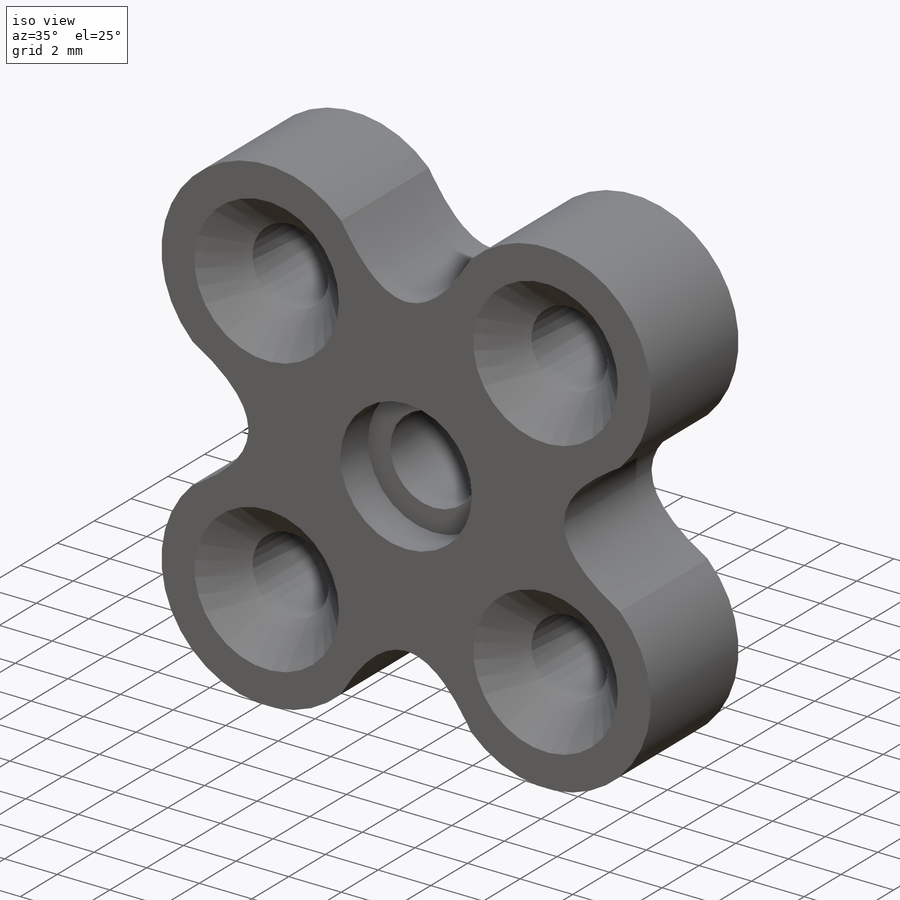
[diagram: iso view]
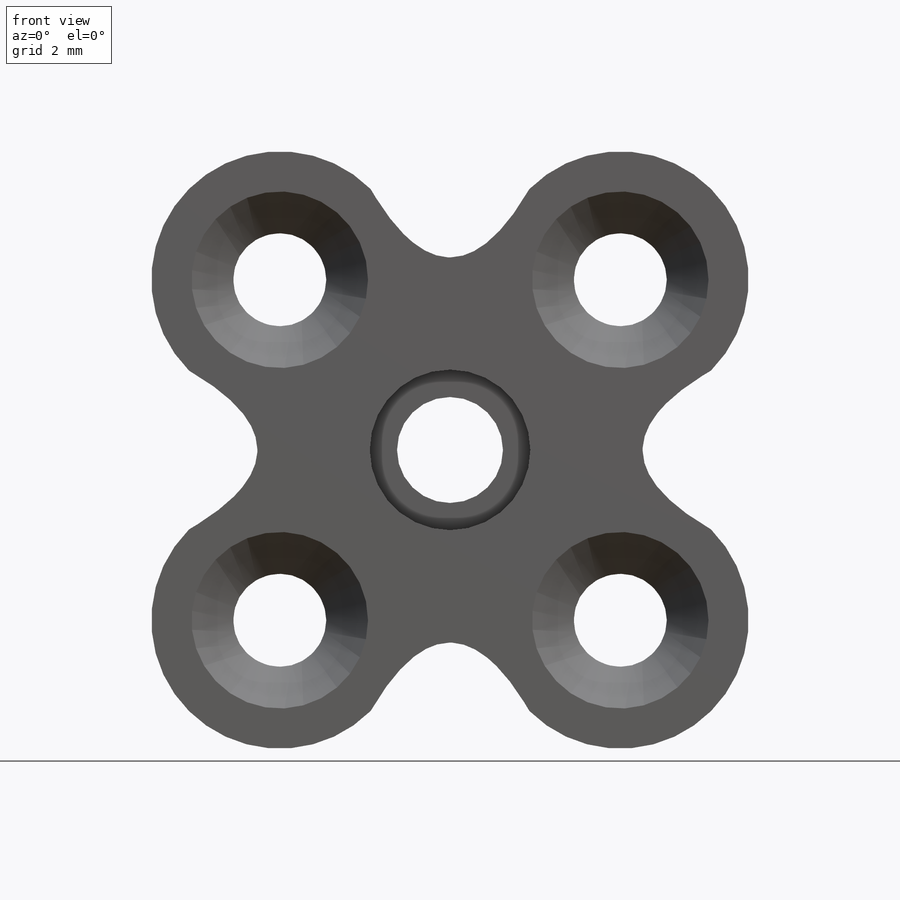
[diagram: front view]
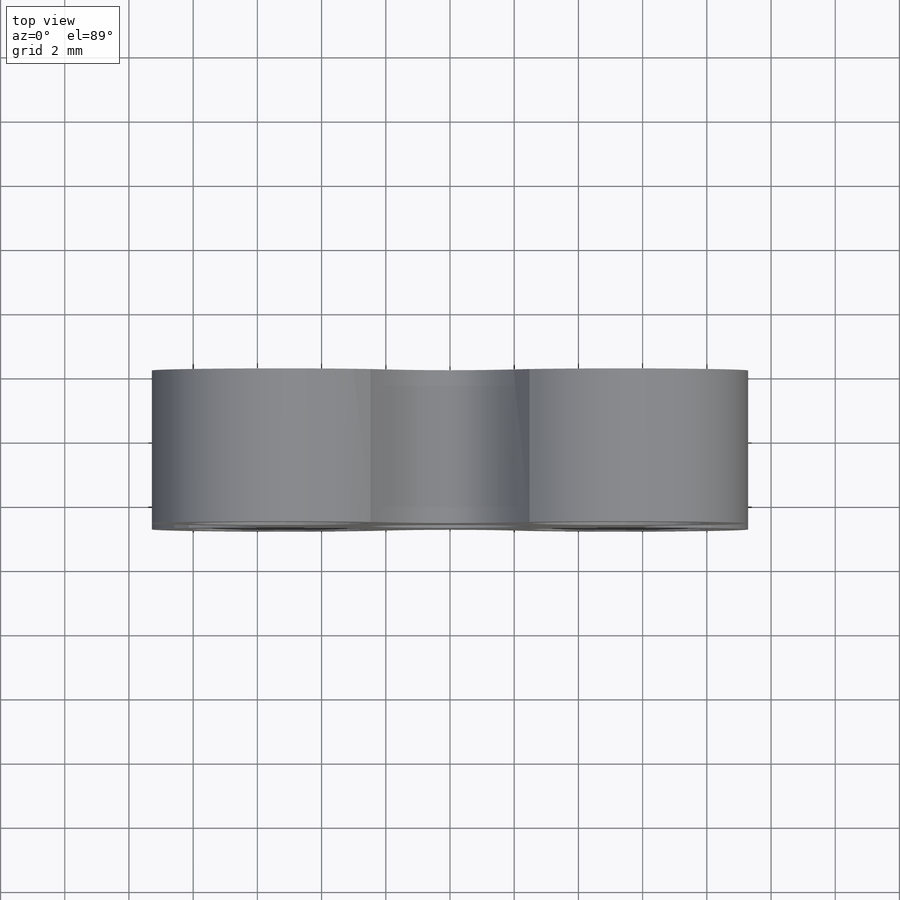
[diagram: top view]
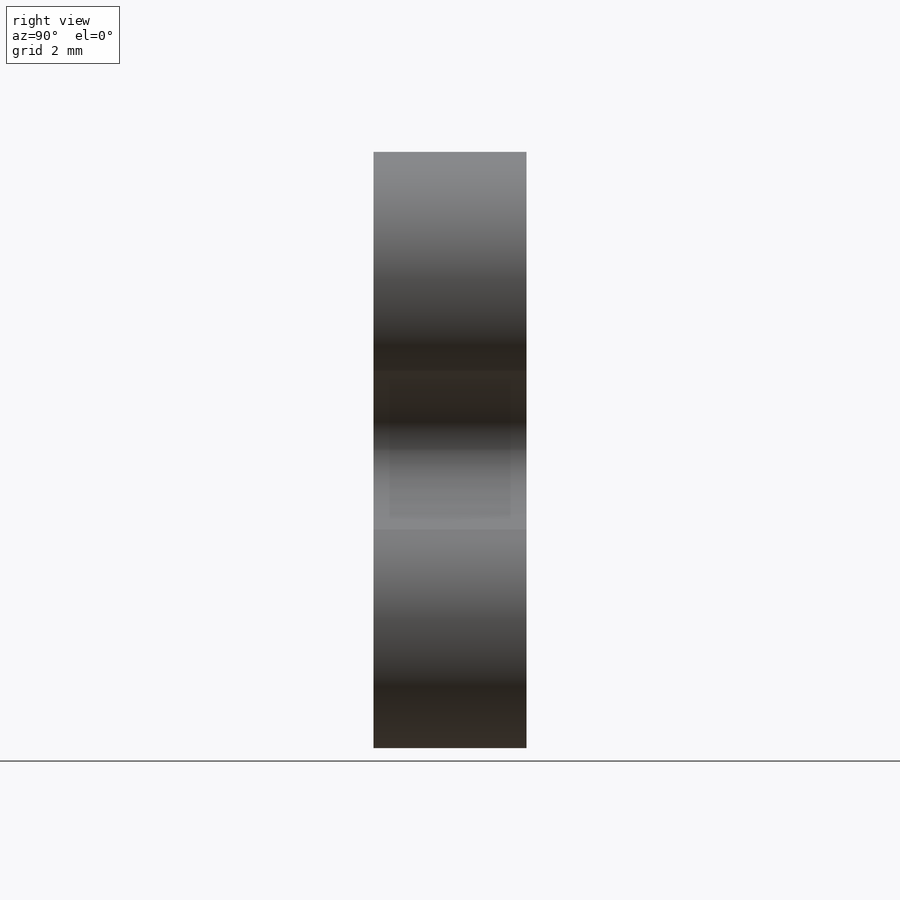
[diagram: right view]
SOLIDWORKS PART (.sldprt)
format: sldprt  version: not decoded by parser v0  size: 312,320 bytes
history: native  units: mm
features: sketch x6, hole x2, material x1, extrude x1, cut_extrude x1 (+13 scaffold rows collapsed)
feature tree (24):
  scaffold x13  (default folders/planes/origin — collapsed)
  material  "6061-T6 (SS)"
  sketch  "Sketch1"  dims[c1.D1=4.0mm c2.D1=45.0deg c3.D1=4.0mm c4.D1=135.0deg c5.D1=4.0mm c6.D1=135.0deg c7.D1=~5.303301mm c8.D1=60.0deg c9.D1=4.0mm c10.D1=45.0deg c11.D1=7.5mm c11.D2=~18.606602mm c11.D3=~18.606602mm]
  extrude  "Boss-Extrude1"  Depth=4.763mm
  hole  "CSK for M2.5 Flat Head Machine Screw1"  Diameter=2.9mm Depth=4.763mm
  sketch  "Sketch3"  dims[c1.D1=7.5mm c1.D2=7.5mm c1.D3=15.0mm c1.D4=15.0mm c1.D5=7.5mm c2.D1=7.5mm c2.D2=7.5mm c2.D3=7.5mm c2.D4=7.5mm c2.D5=15.0mm c2.D6=15.0mm c3.D2=15.0mm]
  sketch  "Sketch2"  dims[hole-wizard template sketch: 55 standard entries collapsed; hole parameters kept: c17.Thru Hole Depth=4.763mm c17.Near C'Sink Dia.=5.5mm c17.D4=~3.666174mm c17.Near C'Sink Angle=90.0deg]
  hole  "Tap Drill for M4x0.7 Tap1"  Diameter=3.3mm Depth=4.763mm
  sketch  "Sketch7"
  sketch  "Sketch6"  dims[hole-wizard template sketch: 59 standard entries collapsed; hole parameters kept: c18.Thru Hole Dia.=3.3mm c18.Thru Hole Depth=4.763mm]
  sketch  "Sketch8"  dims[D1=2.05mm]
  cut_extrude  "Cut-Extrude1"  Depth=1.5mm
decode coverage: 9 of 10 modeling features carry decoded parameters
note: ~ marks probable driven/reference dimensions
note: suppression state not decoded; provenance and decode notes live in map.json
